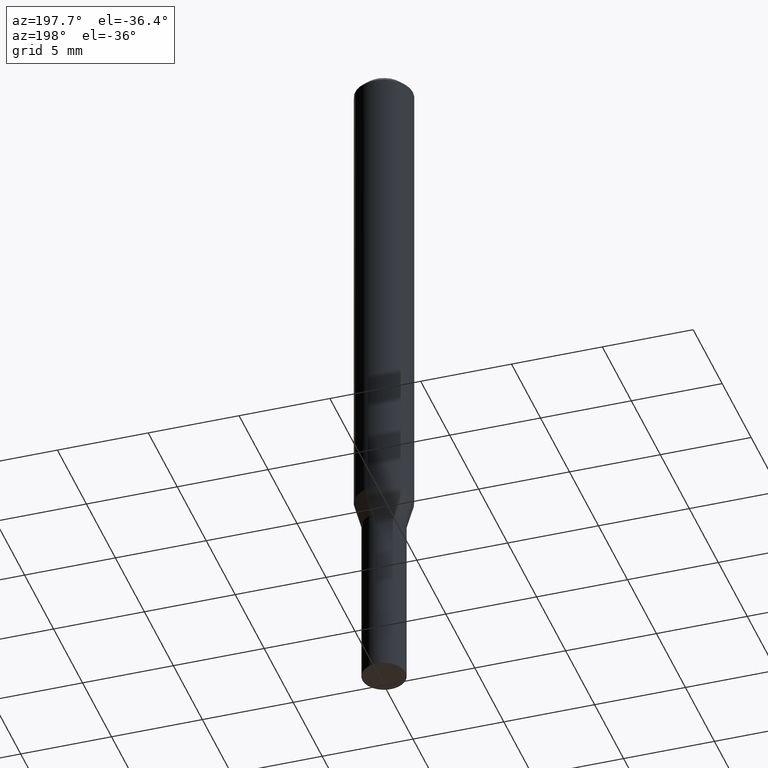
[diagram: clean part render]
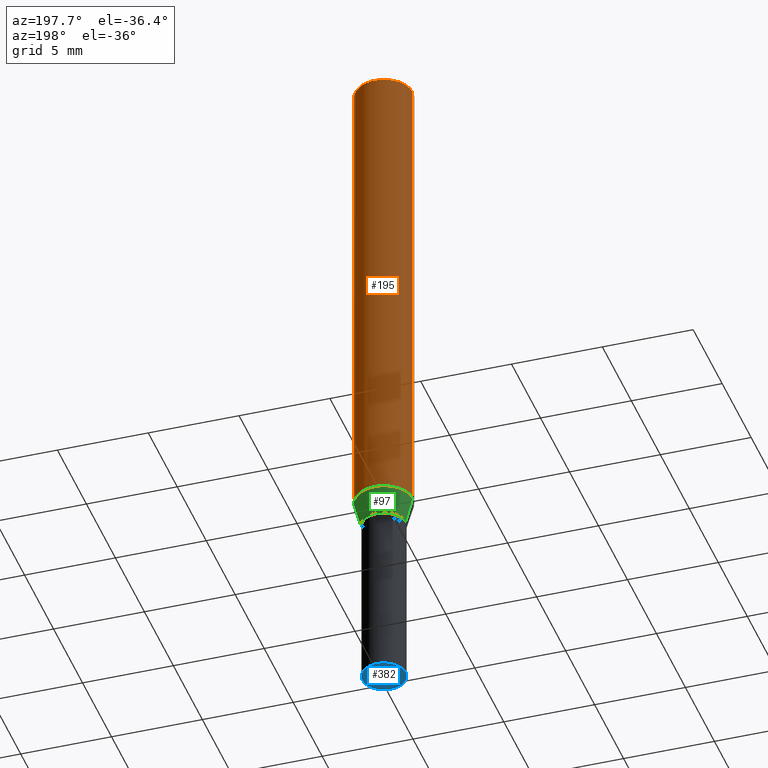
[diagram: same view with three faces highlighted in distinct colors, each labeled with its STEP entity id]
A machine part, auxiliary view with three faces highlighted in distinct colors.
Their STEP definitions:

[orange] entity #195 — the highlighted cylindrical surface (edge-blend (fillet) strip) has radius 1.5875 mm, axis along (-0, 0, 1).
#10 = CARTESIAN_POINT ( 'NONE',  ( 3.668203209277705088E-31, -5.237222008264718399E-17, -0.01499999999999999944 ) ) ;
#15 = EDGE_CURVE ( 'NONE', #219, #146, #91, .T. ) ;
#18 = EDGE_CURVE ( 'NONE', #219, #454, #232, .T. ) ;
#24 = CARTESIAN_POINT ( 'NONE',  ( 2.584322543101508946E-29, -3.689727675106347649E-15, -1.056780007401926458 ) ) ;
#33 = DIRECTION ( 'NONE',  ( 1.000000000000000000, -6.982962677686270655E-15, 0.000000000000000000 ) ) ;
#41 = CARTESIAN_POINT ( 'NONE',  ( 0.06250000000000000000, -4.126162842461739318E-15, -1.056780007401926458 ) ) ;
#49 = EDGE_LOOP ( 'NONE', ( #125, #391, #353, #461 ) ) ;
#54 = EDGE_CURVE ( 'NONE', #454, #272, #222, .T. ) ;
#77 = DIRECTION ( 'NONE',  ( -2.445468806185136597E-29, 3.491481338843145583E-15, 1.000000000000000000 ) ) ;
#91 = LINE ( 'NONE', #398, #356 ) ;
#118 = AXIS2_PLACEMENT_3D ( 'NONE', #10, #77, #344 ) ;
#122 = AXIS2_PLACEMENT_3D ( 'NONE', #24, #290, #33 ) ;
#125 = ORIENTED_EDGE ( 'NONE', *, *, #18, .T. ) ;
#146 = VERTEX_POINT ( 'NONE', #165 ) ;
#165 = CARTESIAN_POINT ( 'NONE',  ( 0.06250000000000000000, -4.888073874380388472E-16, -0.01499999999999999944 ) ) ;
#171 = DIRECTION ( 'NONE',  ( 1.000000000000000000, -6.982962677686266711E-15, 4.876176775795935793E-29 ) ) ;
#188 = CARTESIAN_POINT ( 'NONE',  ( -0.06250000000000000000, 4.440892098500626162E-16, -3.074334431409316114E-30 ) ) ;
#190 = DIRECTION ( 'NONE',  ( -2.445468806185136597E-29, 3.491481338843145583E-15, 1.000000000000000000 ) ) ;
#195 = ADVANCED_FACE ( 'NONE', ( #304 ), #335, .T. ) ;
#198 = CARTESIAN_POINT ( 'NONE',  ( 0.000000000000000000, 0.000000000000000000, 0.000000000000000000 ) ) ;
#202 = AXIS2_PLACEMENT_3D ( 'NONE', #198, #190, #171 ) ;
#219 = VERTEX_POINT ( 'NONE', #41 ) ;
#222 = LINE ( 'NONE', #188, #225 ) ;
#225 = VECTOR ( 'NONE', #466, 39.37007874015748143 ) ;
#232 = CIRCLE ( 'NONE', #122, 0.06250000000000000000 ) ;
#272 = VERTEX_POINT ( 'NONE', #364 ) ;
#276 = CARTESIAN_POINT ( 'NONE',  ( -0.06250000000000000000, -3.245638465256284638E-15, -1.056780007401926458 ) ) ;
#290 = DIRECTION ( 'NONE',  ( -2.445468806185136597E-29, 3.491481338843145583E-15, 1.000000000000000000 ) ) ;
#304 = FACE_OUTER_BOUND ( 'NONE', #49, .T. ) ;
#335 = CYLINDRICAL_SURFACE ( 'NONE', #202, 0.06250000000000000000 ) ;
#344 = DIRECTION ( 'NONE',  ( 1.000000000000000000, -6.982962677686266711E-15, 0.000000000000000000 ) ) ;
#351 = EDGE_CURVE ( 'NONE', #146, #272, #444, .T. ) ;
#353 = ORIENTED_EDGE ( 'NONE', *, *, #351, .F. ) ;
#356 = VECTOR ( 'NONE', #460, 39.37007874015748143 ) ;
#364 = CARTESIAN_POINT ( 'NONE',  ( -0.06250000000000000000, -1.426960737744434748E-15, -0.01499999999999999944 ) ) ;
#391 = ORIENTED_EDGE ( 'NONE', *, *, #54, .T. ) ;
#398 = CARTESIAN_POINT ( 'NONE',  ( 0.06250000000000000000, -4.364351673553916694E-16, 3.047610484872459871E-30 ) ) ;
#444 = CIRCLE ( 'NONE', #118, 0.06250000000000000000 ) ;
#454 = VERTEX_POINT ( 'NONE', #276 ) ;
#460 = DIRECTION ( 'NONE',  ( -2.445468806185136877E-29, 3.491481338843145188E-15, 1.000000000000000000 ) ) ;
#461 = ORIENTED_EDGE ( 'NONE', *, *, #15, .F. ) ;
#466 = DIRECTION ( 'NONE',  ( -2.445468806185136877E-29, 3.491481338843145188E-15, 1.000000000000000000 ) ) ;

[blue] entity #382 — the highlighted planar face has unit normal (-0, 0, 1).
#19 = CIRCLE ( 'NONE', #159, 0.04689999999999999725 ) ;
#20 = ORIENTED_EDGE ( 'NONE', *, *, #287, .F. ) ;
#21 = VERTEX_POINT ( 'NONE', #30 ) ;
#23 = EDGE_LOOP ( 'NONE', ( #20, #416 ) ) ;
#30 = CARTESIAN_POINT ( 'NONE',  ( 0.04689999999999999725, -5.564722957848204079E-15, -1.500000000000000222 ) ) ;
#43 = CARTESIAN_POINT ( 'NONE',  ( -0.04689999999999999725, -4.249324714160141733E-15, -1.500000000000000222 ) ) ;
#46 = EDGE_CURVE ( 'NONE', #123, #21, #19, .T. ) ;
#48 = DIRECTION ( 'NONE',  ( 1.000000000000000000, -6.982962677686265922E-15, 4.876176775795935793E-29 ) ) ;
#58 = CARTESIAN_POINT ( 'NONE',  ( 3.668203209277704895E-29, -5.237222008264718177E-15, -1.500000000000000222 ) ) ;
#65 = DIRECTION ( 'NONE',  ( -2.445468806185136597E-29, 3.491481338843145583E-15, 1.000000000000000000 ) ) ;
#71 = DIRECTION ( 'NONE',  ( 1.000000000000000000, -6.982962677686256455E-15, 0.000000000000000000 ) ) ;
#123 = VERTEX_POINT ( 'NONE', #43 ) ;
#138 = DIRECTION ( 'NONE',  ( -2.445468806185136597E-29, 3.491481338843145583E-15, 1.000000000000000000 ) ) ;
#152 = DIRECTION ( 'NONE',  ( 1.000000000000000000, -6.982962677686256455E-15, 0.000000000000000000 ) ) ;
#156 = CARTESIAN_POINT ( 'NONE',  ( 3.668203209277704895E-29, -5.237222008264718177E-15, -1.500000000000000222 ) ) ;
#159 = AXIS2_PLACEMENT_3D ( 'NONE', #156, #65, #152 ) ;
#187 = CIRCLE ( 'NONE', #451, 0.04689999999999999725 ) ;
#228 = FACE_OUTER_BOUND ( 'NONE', #23, .T. ) ;
#287 = EDGE_CURVE ( 'NONE', #21, #123, #187, .T. ) ;
#363 = AXIS2_PLACEMENT_3D ( 'NONE', #404, #380, #48 ) ;
#380 = DIRECTION ( 'NONE',  ( -2.438088387897960049E-29, 3.491481338843145188E-15, 1.000000000000000000 ) ) ;
#382 = ADVANCED_FACE ( 'NONE', ( #228 ), #414, .F. ) ;
#404 = CARTESIAN_POINT ( 'NONE',  ( 3.576687321579069994E-29, -5.368277968210015545E-15, -1.500000000000000222 ) ) ;
#414 = PLANE ( 'NONE',  #363 ) ;
#416 = ORIENTED_EDGE ( 'NONE', *, *, #46, .F. ) ;
#451 = AXIS2_PLACEMENT_3D ( 'NONE', #58, #138, #71 ) ;

[green] entity #97 — the highlighted conical surface has half-angle 15 deg.
#18 = EDGE_CURVE ( 'NONE', #219, #454, #232, .T. ) ;
#24 = CARTESIAN_POINT ( 'NONE',  ( 2.584322543101508946E-29, -3.689727675106347649E-15, -1.056780007401926458 ) ) ;
#26 = DIRECTION ( 'NONE',  ( -2.445468806185136597E-29, 3.491481338843145583E-15, 1.000000000000000000 ) ) ;
#31 = LINE ( 'NONE', #83, #350 ) ;
#33 = DIRECTION ( 'NONE',  ( 1.000000000000000000, -6.982962677686270655E-15, 0.000000000000000000 ) ) ;
#41 = CARTESIAN_POINT ( 'NONE',  ( 0.06250000000000000000, -4.126162842461739318E-15, -1.056780007401926458 ) ) ;
#83 = CARTESIAN_POINT ( 'NONE',  ( -0.04690000000000017766, -3.559757149738619424E-15, -1.115000000000000213 ) ) ;
#94 = CARTESIAN_POINT ( 'NONE',  ( -0.04690000000000017766, -3.402697807497452228E-15, -1.115000000000000213 ) ) ;
#95 = ORIENTED_EDGE ( 'NONE', *, *, #18, .F. ) ;
#97 = ADVANCED_FACE ( 'NONE', ( #183 ), #258, .T. ) ;
#101 = DIRECTION ( 'NONE',  ( 0.2588190451025214611, 1.565188264969620982E-15, 0.9659258262890679791 ) ) ;
#122 = AXIS2_PLACEMENT_3D ( 'NONE', #24, #290, #33 ) ;
#129 = CIRCLE ( 'NONE', #402, 0.04690000000000017766 ) ;
#158 = DIRECTION ( 'NONE',  ( -0.2588190451025214611, 5.211531920934550253E-15, 0.9659258262890679791 ) ) ;
#169 = EDGE_CURVE ( 'NONE', #317, #219, #172, .T. ) ;
#172 = LINE ( 'NONE', #312, #423 ) ;
#183 = FACE_OUTER_BOUND ( 'NONE', #456, .T. ) ;
#186 = DIRECTION ( 'NONE',  ( 1.000000000000000000, -6.982962677686271444E-15, 0.000000000000000000 ) ) ;
#199 = EDGE_CURVE ( 'NONE', #317, #260, #129, .T. ) ;
#219 = VERTEX_POINT ( 'NONE', #41 ) ;
#232 = CIRCLE ( 'NONE', #122, 0.06250000000000000000 ) ;
#258 = CONICAL_SURFACE ( 'NONE', #314, 0.04690000000000017766, 0.2617993877991501850 ) ;
#260 = VERTEX_POINT ( 'NONE', #94 ) ;
#276 = CARTESIAN_POINT ( 'NONE',  ( -0.06250000000000000000, -3.245638465256284638E-15, -1.056780007401926458 ) ) ;
#280 = EDGE_CURVE ( 'NONE', #260, #454, #31, .T. ) ;
#290 = DIRECTION ( 'NONE',  ( -2.445468806185136597E-29, 3.491481338843145583E-15, 1.000000000000000000 ) ) ;
#292 = CARTESIAN_POINT ( 'NONE',  ( 2.726697718896427687E-29, -3.893001692810107575E-15, -1.115000000000000213 ) ) ;
#312 = CARTESIAN_POINT ( 'NONE',  ( 0.04690000000000017766, -4.220502642393595055E-15, -1.115000000000000213 ) ) ;
#314 = AXIS2_PLACEMENT_3D ( 'NONE', #292, #435, #401 ) ;
#317 = VERTEX_POINT ( 'NONE', #369 ) ;
#350 = VECTOR ( 'NONE', #158, 39.37007874015748143 ) ;
#354 = ORIENTED_EDGE ( 'NONE', *, *, #280, .T. ) ;
#358 = ORIENTED_EDGE ( 'NONE', *, *, #169, .F. ) ;
#369 = CARTESIAN_POINT ( 'NONE',  ( 0.04690000000000017766, -4.220502642393595055E-15, -1.115000000000000213 ) ) ;
#401 = DIRECTION ( 'NONE',  ( 1.000000000000000000, -6.982962677686271444E-15, 0.000000000000000000 ) ) ;
#402 = AXIS2_PLACEMENT_3D ( 'NONE', #429, #26, #186 ) ;
#423 = VECTOR ( 'NONE', #101, 39.37007874015748143 ) ;
#429 = CARTESIAN_POINT ( 'NONE',  ( 2.726697718896427687E-29, -3.893001692810107575E-15, -1.115000000000000213 ) ) ;
#435 = DIRECTION ( 'NONE',  ( -2.445468806185136597E-29, 3.491481338843145583E-15, 1.000000000000000000 ) ) ;
#454 = VERTEX_POINT ( 'NONE', #276 ) ;
#456 = EDGE_LOOP ( 'NONE', ( #464, #354, #95, #358 ) ) ;
#464 = ORIENTED_EDGE ( 'NONE', *, *, #199, .T. ) ;